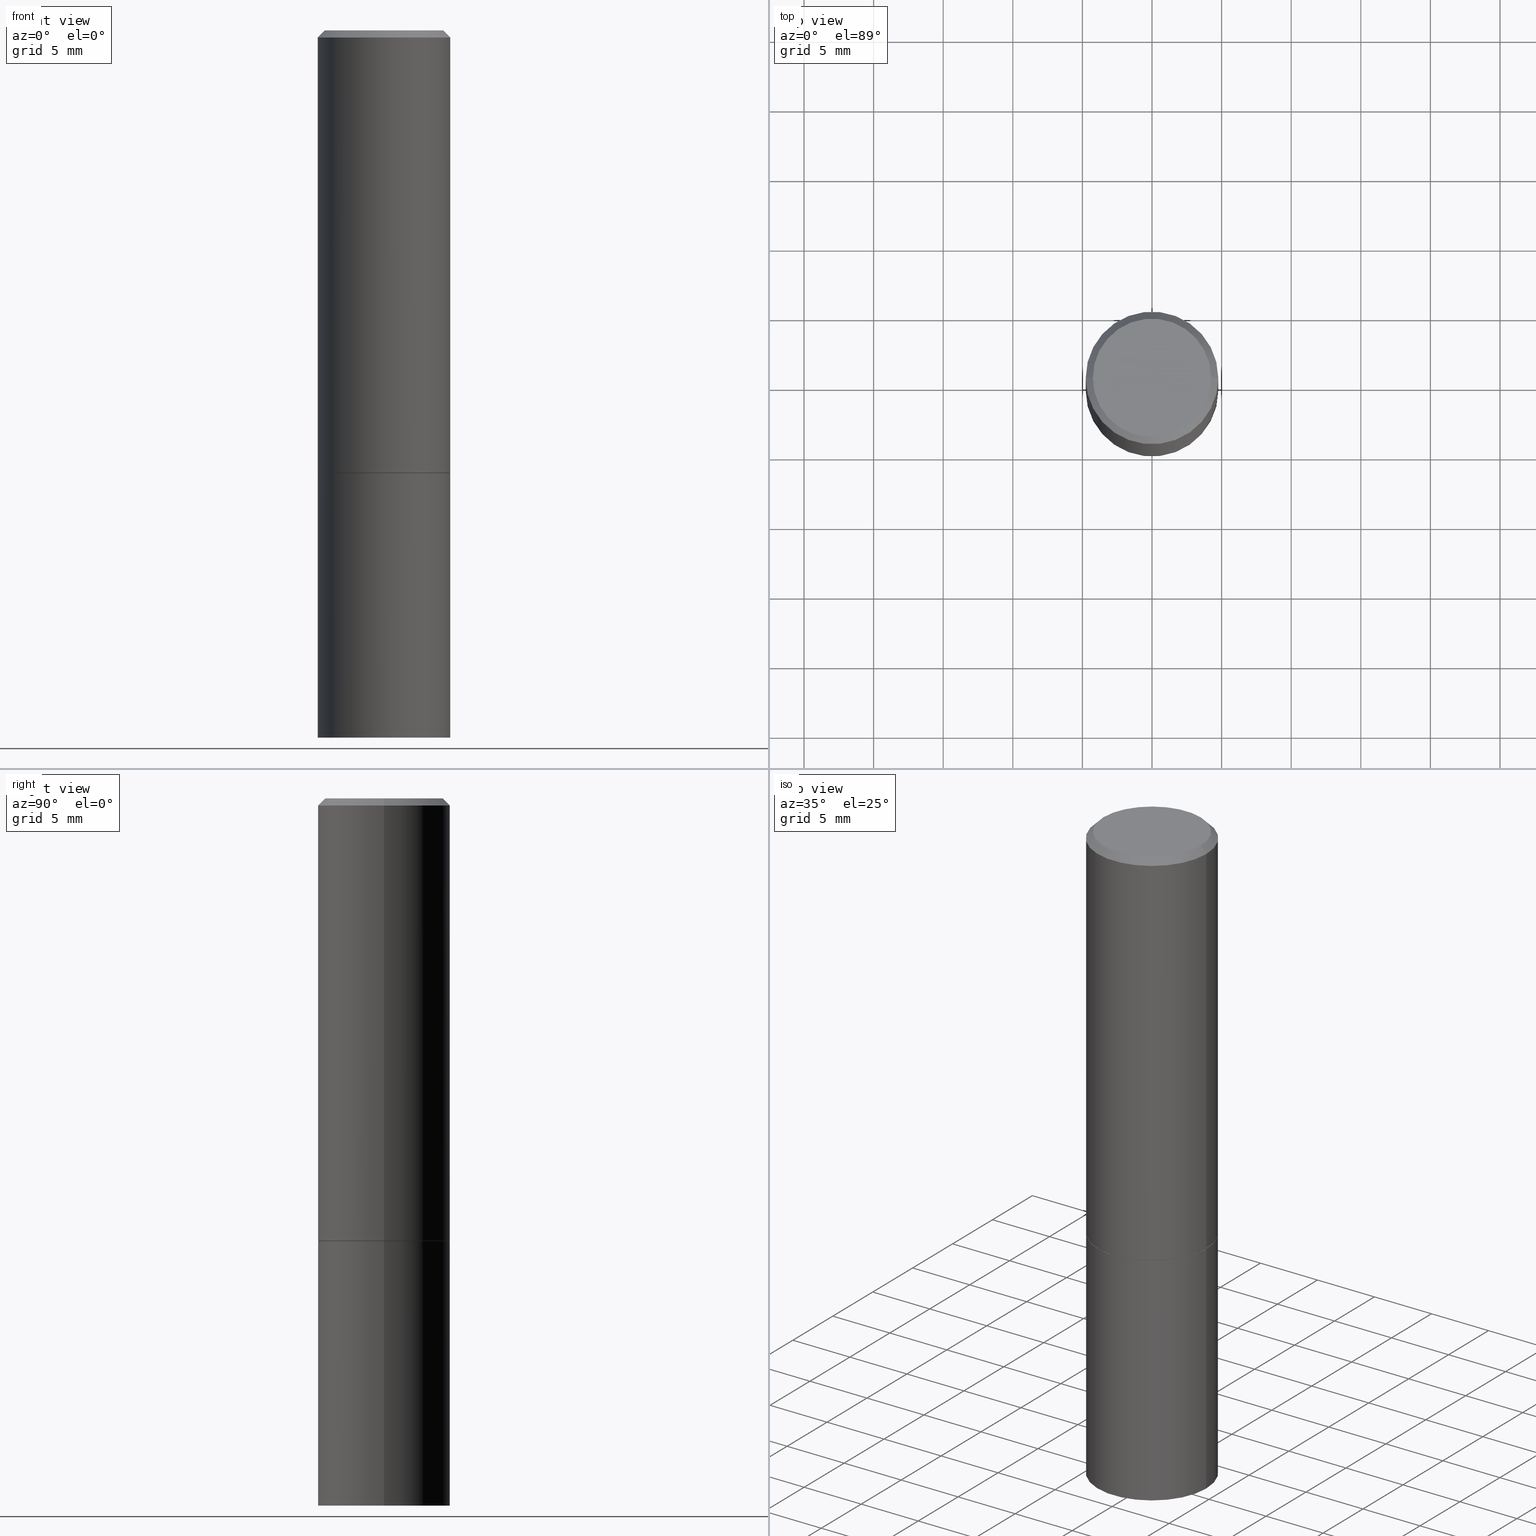
[diagram: canonical four-view strip — front | top / right | iso, engineering-drawing reading convention]
A machine part, canonical four-view strip (front | top / right | iso — engineering-drawing reading convention). The complete STEP part file that produces these views, byte-faithful:
ISO-10303-21;
HEADER;
FILE_DESCRIPTION (( 'STEP AP203' ),
    '1' );
FILE_NAME ('32677.STEP',
    '2022-04-27T15:47:02',
    ( '' ),
    ( '' ),
    'SwSTEP 2.0',
    'SolidWorks 2022',
    '' );
FILE_SCHEMA (( 'CONFIG_CONTROL_DESIGN' ));
ENDSEC;

DATA;
#1 = CARTESIAN_POINT ( 'NONE',  ( 3.061726945343790831E-29, -4.371334636231618486E-15, -1.252000000000000002 ) ) ;
#2 = CALENDAR_DATE ( 2022, 27, 4 ) ;
#3 = DIRECTION ( 'NONE',  ( -2.445468806185136877E-29, 3.491481338843145188E-15, 1.000000000000000000 ) ) ;
#4 = LINE ( 'NONE', #195, #249 ) ;
#5 = APPROVAL ( #130, 'UNSPECIFIED' ) ;
#6 = CYLINDRICAL_SURFACE ( 'NONE', #44, 0.1874999999999999722 ) ;
#7 = FACE_OUTER_BOUND ( 'NONE', #273, .T. ) ;
#8 = FACE_OUTER_BOUND ( 'NONE', #37, .T. ) ;
#9 = ORIENTED_EDGE ( 'NONE', *, *, #253, .F. ) ;
#10 = DIRECTION ( 'NONE',  ( 1.000000000000000000, -6.982962677686266711E-15, 0.000000000000000000 ) ) ;
#11 = DIRECTION ( 'NONE',  ( 2.438088387897960049E-29, -3.491481338843145188E-15, -1.000000000000000000 ) ) ;
#12 = LINE ( 'NONE', #381, #179 ) ;
#13 = VERTEX_POINT ( 'NONE', #357 ) ;
#14 = AXIS2_PLACEMENT_3D ( 'NONE', #345, #205, #157 ) ;
#15 = PERSON_AND_ORGANIZATION ( #106, #146 ) ;
#16 = ORIENTED_EDGE ( 'NONE', *, *, #79, .F. ) ;
#17 = DIRECTION ( 'NONE',  ( 1.000000000000000000, 0.000000000000000000, 0.000000000000000000 ) ) ;
#18 = VERTEX_POINT ( 'NONE', #325 ) ;
#19 = ORIENTED_EDGE ( 'NONE', *, *, #135, .T. ) ;
#20 = CARTESIAN_POINT ( 'NONE',  ( 4.890937612370279289E-31, -6.982962677686299005E-17, -0.02000000000000002470 ) ) ;
#21 = EDGE_CURVE ( 'NONE', #238, #13, #327, .T. ) ;
#22 = EDGE_CURVE ( 'NONE', #52, #226, #81, .T. ) ;
#23 = LOCAL_TIME ( 11, 47, 2.000000000000000000, #66 ) ;
#24 = DATE_AND_TIME ( #330, #58 ) ;
#25 = CC_DESIGN_DATE_AND_TIME_ASSIGNMENT ( #24, #223, ( #167 ) ) ;
#26 = CARTESIAN_POINT ( 'NONE',  ( 4.883120994358428771E-29, -6.971267915954097837E-15, -1.996727175325960557 ) ) ;
#27 = AXIS2_PLACEMENT_3D ( 'NONE', #153, #154, #362 ) ;
#28 = EDGE_CURVE ( 'NONE', #103, #18, #379, .T. ) ;
#29 = ADVANCED_FACE ( 'NONE', ( #173 ), #241, .F. ) ;
#30 = PRODUCT ( '32677', '32677', '', ( #264 ) ) ;
#31 = DIRECTION ( 'NONE',  ( 1.000000000000000000, -6.982962677686265922E-15, 0.000000000000000000 ) ) ;
#32 = DIRECTION ( 'NONE',  ( 0.7071067811865112684, -2.468850131081876830E-15, 0.7071067811865837660 ) ) ;
#33 = AXIS2_PLACEMENT_3D ( 'NONE', #293, #270, #73 ) ;
#34 = DIRECTION ( 'NONE',  ( -2.445468806185136597E-29, 3.491481338843145583E-15, 1.000000000000000000 ) ) ;
#35 = ORIENTED_EDGE ( 'NONE', *, *, #84, .F. ) ;
#36 = CARTESIAN_POINT ( 'NONE',  ( -0.1865000000000000546, -3.040873979690808849E-15, -1.252000000000000002 ) ) ;
#37 = EDGE_LOOP ( 'NONE', ( #147, #382, #265, #140 ) ) ;
#38 = CARTESIAN_POINT ( 'NONE',  ( 0.000000000000000000, 0.000000000000000000, 0.000000000000000000 ) ) ;
#39 = APPROVAL_ROLE ( '' ) ;
#40 = LINE ( 'NONE', #262, #356 ) ;
#41 = APPROVAL_PERSON_ORGANIZATION ( #207, #5, #138 ) ;
#42 = ORIENTED_EDGE ( 'NONE', *, *, #135, .F. ) ;
#43 = CARTESIAN_POINT ( 'NONE',  ( 1.011612334778295380E-27, -1.444314309014566798E-13, -41.36680591548343955 ) ) ;
#44 = AXIS2_PLACEMENT_3D ( 'NONE', #121, #91, #92 ) ;
#45 = ORIENTED_EDGE ( 'NONE', *, *, #243, .F. ) ;
#46 = PERSON_AND_ORGANIZATION_ROLE ( 'creator' ) ;
#47 = ORIENTED_EDGE ( 'NONE', *, *, #344, .F. ) ;
#48 = EDGE_LOOP ( 'NONE', ( #233, #321 ) ) ;
#49 = APPROVAL_STATUS ( 'not_yet_approved' ) ;
#50 = CYLINDRICAL_SURFACE ( 'NONE', #346, 0.1874999999999999722 ) ;
#51 = APPROVAL_PERSON_ORGANIZATION ( #334, #339, #192 ) ;
#52 = VERTEX_POINT ( 'NONE', #355 ) ;
#53 = EDGE_CURVE ( 'NONE', #226, #18, #216, .T. ) ;
#54 = ORIENTED_EDGE ( 'NONE', *, *, #314, .F. ) ;
#55 = CARTESIAN_POINT ( 'NONE',  ( 0.1875000000000000278, -1.309305502066175008E-15, 9.142831454617381013E-30 ) ) ;
#56 = DIRECTION ( 'NONE',  ( 1.000000000000000000, -6.982962677686266711E-15, 0.000000000000000000 ) ) ;
#57 = CIRCLE ( 'NONE', #27, 0.1865000000000000546 ) ;
#58 = LOCAL_TIME ( 11, 47, 2.000000000000000000, #359 ) ;
#59 = UNCERTAINTY_MEASURE_WITH_UNIT (LENGTH_MEASURE( 1.000000000000000082E-05 ), #236, 'distance_accuracy_value', 'NONE');
#60 = EDGE_CURVE ( 'NONE', #237, #239, #115, .T. ) ;
#61 = CIRCLE ( 'NONE', #114, 0.1875000000000000278 ) ;
#62 = DIRECTION ( 'NONE',  ( -2.445468806185136597E-29, 3.491481338843145583E-15, 1.000000000000000000 ) ) ;
#63 = CARTESIAN_POINT ( 'NONE',  ( 0.1865000000000000546, -5.673657175620106691E-15, -1.252000000000000002 ) ) ;
#64 = CARTESIAN_POINT ( 'NONE',  ( 4.890937612370273194E-29, -6.982962677686291165E-15, -2.000000000000000000 ) ) ;
#65 = DIRECTION ( 'NONE',  ( -2.445468806185136597E-29, 3.491481338843145583E-15, 1.000000000000000000 ) ) ;
#66 = COORDINATED_UNIVERSAL_TIME_OFFSET ( 5, 0, .BEHIND. ) ;
#67 = DIRECTION ( 'NONE',  ( -2.445468806185136597E-29, 3.491481338843145583E-15, 1.000000000000000000 ) ) ;
#68 = CC_DESIGN_APPROVAL ( #339, ( #167 ) ) ;
#69 = ORIENTED_EDGE ( 'NONE', *, *, #22, .F. ) ;
#70 = VECTOR ( 'NONE', #386, 39.37007874015748143 ) ;
#71 = ORIENTED_EDGE ( 'NONE', *, *, #243, .T. ) ;
#72 = AXIS2_PLACEMENT_3D ( 'NONE', #139, #271, #297 ) ;
#73 = DIRECTION ( 'NONE',  ( -1.000000000000000000, 6.982962677686265922E-15, -4.876176775795935793E-29 ) ) ;
#74 = FACE_OUTER_BOUND ( 'NONE', #308, .T. ) ;
#75 = DATE_AND_TIME ( #353, #23 ) ;
#76 = CARTESIAN_POINT ( 'NONE',  ( -0.1875000000000000278, -4.344881027408766582E-15, -1.252000000000000002 ) ) ;
#77 = AXIS2_PLACEMENT_3D ( 'NONE', #342, #259, #367 ) ;
#78 = CARTESIAN_POINT ( 'NONE',  ( -0.1874999999999999445, 1.239475875289311513E-15, -0.02000000000000002470 ) ) ;
#79 = EDGE_CURVE ( 'NONE', #268, #208, #4, .T. ) ;
#80 = DIRECTION ( 'NONE',  ( 1.000000000000000000, -6.982962677686265922E-15, 4.876176775795935793E-29 ) ) ;
#81 = CIRCLE ( 'NONE', #128, 0.1875000000000000278 ) ;
#82 = APPROVAL_DATE_TIME ( #222, #125 ) ;
#83 = PERSON_AND_ORGANIZATION_ROLE ( 'creator' ) ;
#84 = EDGE_CURVE ( 'NONE', #113, #103, #340, .T. ) ;
#85 = EDGE_CURVE ( 'NONE', #18, #141, #166, .T. ) ;
#86 = CARTESIAN_POINT ( 'NONE',  ( -0.1674999999999999822, 1.204561061900880455E-15, -8.301862719484110388E-30 ) ) ;
#87 = DESIGN_CONTEXT ( 'detailed design', #304, 'design' ) ;
#88 = FACE_OUTER_BOUND ( 'NONE', #197, .T. ) ;
#89 = AXIS2_PLACEMENT_3D ( 'NONE', #64, #62, #307 ) ;
#90 = VECTOR ( 'NONE', #3, 39.37007874015748143 ) ;
#91 = DIRECTION ( 'NONE',  ( -2.445468806185136597E-29, 3.491481338843145583E-15, 1.000000000000000000 ) ) ;
#92 = DIRECTION ( 'NONE',  ( 1.000000000000000000, -6.982962677686266711E-15, 4.876176775795935793E-29 ) ) ;
#93 = PRODUCT_DEFINITION_FORMATION_WITH_SPECIFIED_SOURCE ( 'ANY', '', #30, .NOT_KNOWN. ) ;
#94 = CIRCLE ( 'NONE', #369, 0.1874999999999999445 ) ;
#95 = CC_DESIGN_PERSON_AND_ORGANIZATION_ASSIGNMENT ( #331, #298, ( #93 ) ) ;
#96 = ORIENTED_EDGE ( 'NONE', *, *, #53, .F. ) ;
#97 = DIRECTION ( 'NONE',  ( -2.445468806185136597E-29, 3.491481338843145583E-15, 1.000000000000000000 ) ) ;
#98 = CIRCLE ( 'NONE', #72, 0.1674999999999999822 ) ;
#99 = DIRECTION ( 'NONE',  ( -1.000000000000000000, 6.982962677686266711E-15, 0.000000000000000000 ) ) ;
#100 = CARTESIAN_POINT ( 'NONE',  ( -0.1865000000000000546, -3.046172434039030856E-15, -1.252000000000000002 ) ) ;
#101 = ADVANCED_FACE ( 'NONE', ( #7 ), #287, .T. ) ;
#102 = EDGE_CURVE ( 'NONE', #239, #237, #57, .T. ) ;
#103 = VERTEX_POINT ( 'NONE', #86 ) ;
#104 = ORIENTED_EDGE ( 'NONE', *, *, #165, .T. ) ;
#105 = LENGTH_MEASURE_WITH_UNIT ( LENGTH_MEASURE( 0.02539999999999999897 ), #112 );
#106 = PERSON ( 'UNSPECIFIED', 'UNSPECIFIED', 'UNSPECIFIED', ('UNSPECIFIED'), ('UNSPECIFIED'), ('UNSPECIFIED') ) ;
#107 = EDGE_LOOP ( 'NONE', ( #47, #276, #45 ) ) ;
#108 = ORIENTED_EDGE ( 'NONE', *, *, #315, .T. ) ;
#109 = ORIENTED_EDGE ( 'NONE', *, *, #384, .F. ) ;
#110 = ADVANCED_FACE ( 'NONE', ( #202 ), #131, .F. ) ;
#111 = CARTESIAN_POINT ( 'NONE',  ( 3.059281476537605228E-29, -4.367843154892774690E-15, -1.250999999999999890 ) ) ;
#112 =( LENGTH_UNIT ( ) NAMED_UNIT ( * ) SI_UNIT ( $, .METRE. ) );
#113 = VERTEX_POINT ( 'NONE', #127 ) ;
#114 = AXIS2_PLACEMENT_3D ( 'NONE', #313, #124, #170 ) ;
#115 = CIRCLE ( 'NONE', #201, 0.1865000000000000546 ) ;
#116 = CARTESIAN_POINT ( 'NONE',  ( -0.1875000000000000278, 1.332267629550188046E-15, -9.223003294227947991E-30 ) ) ;
#117 = EDGE_CURVE ( 'NONE', #237, #52, #40, .T. ) ;
#118 = CARTESIAN_POINT ( 'NONE',  ( 0.1875000000000009992, -8.269306052268460433E-15, -2.000000000000000000 ) ) ;
#119 = LOCAL_TIME ( 11, 47, 2.000000000000000000, #214 ) ;
#120 = ORIENTED_EDGE ( 'NONE', *, *, #165, .F. ) ;
#121 = CARTESIAN_POINT ( 'NONE',  ( 0.000000000000000000, 0.000000000000000000, 0.000000000000000000 ) ) ;
#122 = CIRCLE ( 'NONE', #190, 0.1875000000000000278 ) ;
#123 = CARTESIAN_POINT ( 'NONE',  ( 3.061726945343790831E-29, -4.371334636231618486E-15, -1.252000000000000002 ) ) ;
#124 = DIRECTION ( 'NONE',  ( -2.445468806185136597E-29, 3.491481338843145583E-15, 1.000000000000000000 ) ) ;
#125 = APPROVAL ( #49, 'UNSPECIFIED' ) ;
#126 = ORIENTED_EDGE ( 'NONE', *, *, #28, .F. ) ;
#127 = CARTESIAN_POINT ( 'NONE',  ( 0.1674999999999999822, -1.252653207992878091E-15, 8.469775550109239385E-30 ) ) ;
#128 = AXIS2_PLACEMENT_3D ( 'NONE', #111, #235, #349 ) ;
#129 = AXIS2_PLACEMENT_3D ( 'NONE', #20, #312, #144 ) ;
#130 = APPROVAL_STATUS ( 'not_yet_approved' ) ;
#131 = CONICAL_SURFACE ( 'NONE', #77, 2255.510300424507022, 1.553343034274960344 ) ;
#132 = FACE_OUTER_BOUND ( 'NONE', #351, .T. ) ;
#133 = DIRECTION ( 'NONE',  ( 0.9998476951563912696, -6.920387862090559512E-15, -0.01745240643727649296 ) ) ;
#134 = ADVANCED_FACE ( 'NONE', ( #132 ), #203, .F. ) ;
#135 = EDGE_CURVE ( 'NONE', #226, #52, #194, .T. ) ;
#136 = PRODUCT_RELATED_PRODUCT_CATEGORY ( 'detail', '', ( #30 ) ) ;
#137 = ORIENTED_EDGE ( 'NONE', *, *, #28, .T. ) ;
#138 = APPROVAL_ROLE ( '' ) ;
#139 = CARTESIAN_POINT ( 'NONE',  ( 0.000000000000000000, 0.000000000000000000, 0.000000000000000000 ) ) ;
#140 = ORIENTED_EDGE ( 'NONE', *, *, #305, .F. ) ;
#141 = VERTEX_POINT ( 'NONE', #231 ) ;
#142 = DATE_TIME_ROLE ( 'creation_date' ) ;
#143 = EDGE_LOOP ( 'NONE', ( #71, #370, #161, #175 ) ) ;
#144 = DIRECTION ( 'NONE',  ( -1.000000000000000000, 6.982962677686266711E-15, 0.000000000000000000 ) ) ;
#145 = ORIENTED_EDGE ( 'NONE', *, *, #219, .T. ) ;
#146 = ORGANIZATION ( 'UNSPECIFIED', 'UNSPECIFIED', '' ) ;
#147 = ORIENTED_EDGE ( 'NONE', *, *, #274, .F. ) ;
#148 = DIRECTION ( 'NONE',  ( -2.438088387897960049E-29, 3.491481338843145188E-15, 1.000000000000000000 ) ) ;
#149 = VECTOR ( 'NONE', #247, 39.37007874015748854 ) ;
#150 = APPROVAL_DATE_TIME ( #332, #339 ) ;
#151 = AXIS2_PLACEMENT_3D ( 'NONE', #263, #97, #311 ) ;
#152 = ADVANCED_FACE ( 'NONE', ( #309 ), #303, .T. ) ;
#153 = CARTESIAN_POINT ( 'NONE',  ( 3.061726945343790831E-29, -4.371334636231618486E-15, -1.252000000000000002 ) ) ;
#154 = DIRECTION ( 'NONE',  ( -2.445468806185136597E-29, 3.491481338843145583E-15, 1.000000000000000000 ) ) ;
#155 = APPROVAL_PERSON_ORGANIZATION ( #322, #125, #39 ) ;
#156 = CLOSED_SHELL ( 'NONE', ( #184, #110, #185, #204, #29 ) ) ;
#157 = DIRECTION ( 'NONE',  ( 1.000000000000000000, -6.982962677686265922E-15, 4.876176775795935793E-29 ) ) ;
#158 = CARTESIAN_POINT ( 'NONE',  ( 4.890937612370279289E-31, -6.982962677686299005E-17, -0.02000000000000002470 ) ) ;
#159 = CARTESIAN_POINT ( 'NONE',  ( -0.1875000000000000278, -8.865687612846302579E-16, -1.250999999999999890 ) ) ;
#160 = MANIFOLD_SOLID_BREP ( 'Body-Move/Copy2[2]', #360 ) ;
#161 = ORIENTED_EDGE ( 'NONE', *, *, #219, .F. ) ;
#162 = DIRECTION ( 'NONE',  ( -2.445468806185136597E-29, 3.491481338843145583E-15, 1.000000000000000000 ) ) ;
#163 = MANIFOLD_SOLID_BREP ( 'Body-Move/Copy2[1]', #156 ) ;
#164 = CARTESIAN_POINT ( 'NONE',  ( 4.890937612370279289E-31, -6.982962677686299005E-17, -0.02000000000000002470 ) ) ;
#165 = EDGE_CURVE ( 'NONE', #141, #18, #94, .T. ) ;
#166 = CIRCLE ( 'NONE', #390, 0.1874999999999999445 ) ;
#167 = SECURITY_CLASSIFICATION ( '', '', #302 ) ;
#168 =( NAMED_UNIT ( * ) SI_UNIT ( $, .STERADIAN. ) SOLID_ANGLE_UNIT ( ) );
#169 = ORIENTED_EDGE ( 'NONE', *, *, #60, .T. ) ;
#170 = DIRECTION ( 'NONE',  ( 1.000000000000000000, -6.982962677686266711E-15, 0.000000000000000000 ) ) ;
#171 = FACE_OUTER_BOUND ( 'NONE', #377, .T. ) ;
#172 = ORIENTED_EDGE ( 'NONE', *, *, #84, .T. ) ;
#173 = FACE_OUTER_BOUND ( 'NONE', #352, .T. ) ;
#174 = CALENDAR_DATE ( 2022, 27, 4 ) ;
#175 = ORIENTED_EDGE ( 'NONE', *, *, #21, .F. ) ;
#176 = CARTESIAN_POINT ( 'NONE',  ( -0.1874999999999999722, 1.332267629550187651E-15, -9.223003294227946589E-30 ) ) ;
#177 = COORDINATED_UNIVERSAL_TIME_OFFSET ( 5, 0, .BEHIND. ) ;
#178 = DIRECTION ( 'NONE',  ( -0.7071067811865112684, 7.493145998870223209E-15, 0.7071067811865837660 ) ) ;
#179 = VECTOR ( 'NONE', #133, 39.37007874015748143 ) ;
#180 = AXIS2_PLACEMENT_3D ( 'NONE', #199, #34, #224 ) ;
#181 = CC_DESIGN_PERSON_AND_ORGANIZATION_ASSIGNMENT ( #350, #46, ( #251 ) ) ;
#182 = DIRECTION ( 'NONE',  ( -2.445468806185136877E-29, 3.491481338843145188E-15, 1.000000000000000000 ) ) ;
#183 = CARTESIAN_POINT ( 'NONE',  ( 3.061726945343790831E-29, -4.371334636231618486E-15, -1.252000000000000002 ) ) ;
#184 = ADVANCED_FACE ( 'NONE', ( #373 ), #310, .T. ) ;
#185 = ADVANCED_FACE ( 'NONE', ( #341 ), #246, .F. ) ;
#186 = VECTOR ( 'NONE', #182, 39.37007874015748143 ) ;
#187 = ADVANCED_BREP_SHAPE_REPRESENTATION ( '32677', ( #163, #160, #281 ), #193 ) ;
#188 = LINE ( 'NONE', #300, #149 ) ;
#189 = PERSON_AND_ORGANIZATION ( #106, #146 ) ;
#190 = AXIS2_PLACEMENT_3D ( 'NONE', #221, #329, #56 ) ;
#191 = COORDINATED_UNIVERSAL_TIME_OFFSET ( 5, 0, .BEHIND. ) ;
#192 = APPROVAL_ROLE ( '' ) ;
#193 =( GEOMETRIC_REPRESENTATION_CONTEXT ( 3 ) GLOBAL_UNCERTAINTY_ASSIGNED_CONTEXT ( ( #59 ) ) GLOBAL_UNIT_ASSIGNED_CONTEXT ( ( #236, #295, #168 ) ) REPRESENTATION_CONTEXT ( 'NONE', 'WORKASPACE' ) );
#194 = CIRCLE ( 'NONE', #151, 0.1875000000000000278 ) ;
#195 = CARTESIAN_POINT ( 'NONE',  ( -2.677554574301123258E-19, -6.971535671411577122E-15, -1.996727175325960557 ) ) ;
#196 = DIRECTION ( 'NONE',  ( -2.445468806185136597E-29, 3.491481338843145583E-15, 1.000000000000000000 ) ) ;
#197 = EDGE_LOOP ( 'NONE', ( #109, #290, #306, #42 ) ) ;
#198 = CARTESIAN_POINT ( 'NONE',  ( 3.061726945343790831E-29, -4.371334636231618486E-15, -1.252000000000000002 ) ) ;
#199 = CARTESIAN_POINT ( 'NONE',  ( 0.000000000000000000, 0.000000000000000000, 0.000000000000000000 ) ) ;
#200 = CC_DESIGN_SECURITY_CLASSIFICATION ( #167, ( #93 ) ) ;
#201 = AXIS2_PLACEMENT_3D ( 'NONE', #1, #234, #348 ) ;
#202 = FACE_OUTER_BOUND ( 'NONE', #296, .T. ) ;
#203 = PLANE ( 'NONE',  #261 ) ;
#204 = ADVANCED_FACE ( 'NONE', ( #8 ), #338, .T. ) ;
#205 = DIRECTION ( 'NONE',  ( -2.445468806185136597E-29, 3.491481338843145583E-15, 1.000000000000000000 ) ) ;
#206 = CARTESIAN_POINT ( 'NONE',  ( -0.1875000000000009992, -5.673657175620109846E-15, -2.000000000000000000 ) ) ;
#207 = PERSON_AND_ORGANIZATION ( #106, #146 ) ;
#208 = VERTEX_POINT ( 'NONE', #206 ) ;
#209 = DIRECTION ( 'NONE',  ( -0.7071067811865462405, 2.468850131082243650E-15, -0.7071067811865486830 ) ) ;
#210 = DIRECTION ( 'NONE',  ( 1.000000000000000000, -6.982962677686266711E-15, 4.876176775795935793E-29 ) ) ;
#211 = ORIENTED_EDGE ( 'NONE', *, *, #22, .T. ) ;
#212 = ORIENTED_EDGE ( 'NONE', *, *, #305, .T. ) ;
#213 = DATE_AND_TIME ( #174, #119 ) ;
#214 = COORDINATED_UNIVERSAL_TIME_OFFSET ( 5, 0, .BEHIND. ) ;
#215 = AXIS2_PLACEMENT_3D ( 'NONE', #286, #285, #99 ) ;
#216 = LINE ( 'NONE', #176, #354 ) ;
#217 = ADVANCED_FACE ( 'NONE', ( #289 ), #6, .T. ) ;
#218 = CONICAL_SURFACE ( 'NONE', #365, 0.1865000000000000546, 0.7853981633973970977 ) ;
#219 = EDGE_CURVE ( 'NONE', #13, #363, #61, .T. ) ;
#220 = LINE ( 'NONE', #116, #70 ) ;
#221 = CARTESIAN_POINT ( 'NONE',  ( 3.061726945343790831E-29, -4.371334636231618486E-15, -1.252000000000000002 ) ) ;
#222 = DATE_AND_TIME ( #336, #242 ) ;
#223 = DATE_TIME_ROLE ( 'classification_date' ) ;
#224 = DIRECTION ( 'NONE',  ( 1.000000000000000000, -6.982962677686266711E-15, 4.876176775795935232E-29 ) ) ;
#225 = CARTESIAN_POINT ( 'NONE',  ( 1.169646248512449595E-15, 0.1674999999999999822, -5.848231242562268683E-16 ) ) ;
#226 = VERTEX_POINT ( 'NONE', #159 ) ;
#227 = CARTESIAN_POINT ( 'NONE',  ( 0.1874999999999999722, -1.309305502066174811E-15, 9.142831454617378210E-30 ) ) ;
#228 = DIRECTION ( 'NONE',  ( 1.000000000000000000, -6.982962677686266711E-15, 0.000000000000000000 ) ) ;
#229 = LINE ( 'NONE', #227, #90 ) ;
#230 = EDGE_CURVE ( 'NONE', #52, #141, #229, .T. ) ;
#231 = CARTESIAN_POINT ( 'NONE',  ( 0.1874999999999999445, -1.356173001359024874E-15, -0.02000000000000002470 ) ) ;
#232 = APPLICATION_PROTOCOL_DEFINITION ( 'international standard', 'config_control_design', 1994, #275 ) ;
#233 = ORIENTED_EDGE ( 'NONE', *, *, #60, .F. ) ;
#234 = DIRECTION ( 'NONE',  ( -2.445468806185136597E-29, 3.491481338843145583E-15, 1.000000000000000000 ) ) ;
#235 = DIRECTION ( 'NONE',  ( -2.445468806185136597E-29, 3.491481338843145583E-15, 1.000000000000000000 ) ) ;
#236 =( CONVERSION_BASED_UNIT ( 'INCH', #105 ) LENGTH_UNIT ( ) NAMED_UNIT ( #323 ) );
#237 = VERTEX_POINT ( 'NONE', #63 ) ;
#238 = VERTEX_POINT ( 'NONE', #118 ) ;
#239 = VERTEX_POINT ( 'NONE', #36 ) ;
#240 = DIRECTION ( 'NONE',  ( -2.445468806185136877E-29, 3.491481338843145188E-15, 1.000000000000000000 ) ) ;
#241 = PLANE ( 'NONE',  #33 ) ;
#242 = LOCAL_TIME ( 11, 47, 2.000000000000000000, #177 ) ;
#243 = EDGE_CURVE ( 'NONE', #238, #208, #317, .T. ) ;
#244 = ADVANCED_FACE ( 'NONE', ( #88 ), #218, .T. ) ;
#245 = ORIENTED_EDGE ( 'NONE', *, *, #384, .T. ) ;
#246 = CONICAL_SURFACE ( 'NONE', #326, 2255.510300424507022, 1.553343034274960344 ) ;
#247 = DIRECTION ( 'NONE',  ( 0.7071067811865462405, -7.319954787623251312E-15, -0.7071067811865486830 ) ) ;
#248 = VECTOR ( 'NONE', #178, 39.37007874015748143 ) ;
#249 = VECTOR ( 'NONE', #254, 39.37007874015748143 ) ;
#250 = PERSON_AND_ORGANIZATION ( #106, #146 ) ;
#251 = PRODUCT_DEFINITION ( 'UNKNOWN', '', #93, #87 ) ;
#252 = SHAPE_DEFINITION_REPRESENTATION ( #333, #187 ) ;
#253 = EDGE_CURVE ( 'NONE', #208, #238, #277, .T. ) ;
#254 = DIRECTION ( 'NONE',  ( -0.9998476951563912696, 6.920964387254060733E-15, -0.01745240643727649296 ) ) ;
#255 = DIRECTION ( 'NONE',  ( 2.445468806185136597E-29, -3.491481338843145583E-15, -1.000000000000000000 ) ) ;
#256 = ORIENTED_EDGE ( 'NONE', *, *, #230, .T. ) ;
#257 = DIRECTION ( 'NONE',  ( 1.000000000000000000, -6.982962677686265922E-15, 4.876176775795935793E-29 ) ) ;
#258 = AXIS2_PLACEMENT_3D ( 'NONE', #38, #67, #257 ) ;
#259 = DIRECTION ( 'NONE',  ( 2.445468806185136597E-29, -3.491481338843145583E-15, -1.000000000000000000 ) ) ;
#260 = ORIENTED_EDGE ( 'NONE', *, *, #85, .T. ) ;
#261 = AXIS2_PLACEMENT_3D ( 'NONE', #225, #11, #371 ) ;
#262 = CARTESIAN_POINT ( 'NONE',  ( 0.1865000000000000546, -5.673657175620106691E-15, -1.252000000000000002 ) ) ;
#263 = CARTESIAN_POINT ( 'NONE',  ( 3.059281476537605228E-29, -4.367843154892774690E-15, -1.250999999999999890 ) ) ;
#264 = MECHANICAL_CONTEXT ( 'NONE', #275, 'mechanical' ) ;
#265 = ORIENTED_EDGE ( 'NONE', *, *, #21, .T. ) ;
#266 = APPROVAL_DATE_TIME ( #75, #5 ) ;
#267 = DIRECTION ( 'NONE',  ( -2.445468806185136597E-29, 3.491481338843145583E-15, 1.000000000000000000 ) ) ;
#268 = VERTEX_POINT ( 'NONE', #26 ) ;
#269 = CC_DESIGN_PERSON_AND_ORGANIZATION_ASSIGNMENT ( #250, #387, ( #167 ) ) ;
#270 = DIRECTION ( 'NONE',  ( 2.438088387897960049E-29, -3.491481338843145188E-15, -1.000000000000000000 ) ) ;
#271 = DIRECTION ( 'NONE',  ( -2.445468806185136597E-29, 3.491481338843145583E-15, 1.000000000000000000 ) ) ;
#272 = ORIENTED_EDGE ( 'NONE', *, *, #53, .T. ) ;
#273 = EDGE_LOOP ( 'NONE', ( #169, #245, #69, #337 ) ) ;
#274 = EDGE_CURVE ( 'NONE', #208, #363, #220, .T. ) ;
#275 = APPLICATION_CONTEXT ( 'configuration controlled 3d designs of mechanical parts and assemblies' ) ;
#276 = ORIENTED_EDGE ( 'NONE', *, *, #79, .T. ) ;
#277 = CIRCLE ( 'NONE', #89, 0.1875000000000000278 ) ;
#278 = CC_DESIGN_DATE_AND_TIME_ASSIGNMENT ( #213, #142, ( #251 ) ) ;
#279 = ADVANCED_FACE ( 'NONE', ( #328 ), #389, .F. ) ;
#280 = ORIENTED_EDGE ( 'NONE', *, *, #85, .F. ) ;
#281 = AXIS2_PLACEMENT_3D ( 'NONE', #291, #319, #17 ) ;
#282 = DIRECTION ( 'NONE',  ( -2.445468806185136597E-29, 3.491481338843145583E-15, 1.000000000000000000 ) ) ;
#283 = DIRECTION ( 'NONE',  ( -1.000000000000000000, 6.982962677686266711E-15, 0.000000000000000000 ) ) ;
#284 = DIRECTION ( 'NONE',  ( 1.000000000000000000, -6.982962677686266711E-15, 0.000000000000000000 ) ) ;
#285 = DIRECTION ( 'NONE',  ( 2.445468806185136597E-29, -3.491481338843145583E-15, -1.000000000000000000 ) ) ;
#286 = CARTESIAN_POINT ( 'NONE',  ( 4.890937612370279289E-31, -6.982962677686299005E-17, -0.02000000000000002470 ) ) ;
#287 = CONICAL_SURFACE ( 'NONE', #383, 0.1865000000000000546, 0.7853981633973970977 ) ;
#288 = LOCAL_TIME ( 11, 47, 2.000000000000000000, #191 ) ;
#289 = FACE_OUTER_BOUND ( 'NONE', #316, .T. ) ;
#290 = ORIENTED_EDGE ( 'NONE', *, *, #102, .T. ) ;
#291 = CARTESIAN_POINT ( 'NONE',  ( 0.000000000000000000, 0.000000000000000000, 0.000000000000000000 ) ) ;
#292 = ORIENTED_EDGE ( 'NONE', *, *, #344, .T. ) ;
#293 = CARTESIAN_POINT ( 'NONE',  ( 1.309305502066205577E-15, 0.1874999999999956424, -1.252000000000000446 ) ) ;
#294 = EDGE_LOOP ( 'NONE', ( #35, #378, #104, #126 ) ) ;
#295 =( NAMED_UNIT ( * ) PLANE_ANGLE_UNIT ( ) SI_UNIT ( $, .RADIAN. ) );
#296 = EDGE_LOOP ( 'NONE', ( #16, #292, #9 ) ) ;
#297 = DIRECTION ( 'NONE',  ( 1.000000000000000000, -6.982962677686266711E-15, 4.876176775795935232E-29 ) ) ;
#298 = PERSON_AND_ORGANIZATION_ROLE ( 'design_supplier' ) ;
#299 = CONICAL_SURFACE ( 'NONE', #129, 0.1874999999999999445, 0.7853981633974466137 ) ;
#300 = CARTESIAN_POINT ( 'NONE',  ( 0.1874999999999999445, -1.356173001359024874E-15, -0.02000000000000002470 ) ) ;
#301 = APPROVAL_STATUS ( 'not_yet_approved' ) ;
#302 = SECURITY_CLASSIFICATION_LEVEL ( 'unclassified' ) ;
#303 = CONICAL_SURFACE ( 'NONE', #215, 0.1874999999999999445, 0.7853981633974466137 ) ;
#304 = APPLICATION_CONTEXT ( 'configuration controlled 3d designs of mechanical parts and assemblies' ) ;
#305 = EDGE_CURVE ( 'NONE', #363, #13, #122, .T. ) ;
#306 = ORIENTED_EDGE ( 'NONE', *, *, #117, .T. ) ;
#307 = DIRECTION ( 'NONE',  ( 1.000000000000000000, -6.982962677686266711E-15, 0.000000000000000000 ) ) ;
#308 = EDGE_LOOP ( 'NONE', ( #96, #19, #256, #280 ) ) ;
#309 = FACE_OUTER_BOUND ( 'NONE', #294, .T. ) ;
#310 = CYLINDRICAL_SURFACE ( 'NONE', #14, 0.1875000000000000278 ) ;
#311 = DIRECTION ( 'NONE',  ( 1.000000000000000000, -6.982962677686266711E-15, 0.000000000000000000 ) ) ;
#312 = DIRECTION ( 'NONE',  ( 2.445468806185136597E-29, -3.491481338843145583E-15, -1.000000000000000000 ) ) ;
#313 = CARTESIAN_POINT ( 'NONE',  ( 3.061726945343790831E-29, -4.371334636231618486E-15, -1.252000000000000002 ) ) ;
#314 = EDGE_CURVE ( 'NONE', #113, #141, #188, .T. ) ;
#315 = EDGE_CURVE ( 'NONE', #103, #113, #98, .T. ) ;
#316 = EDGE_LOOP ( 'NONE', ( #211, #272, #120, #347 ) ) ;
#317 = CIRCLE ( 'NONE', #366, 0.1875000000000000278 ) ;
#318 = APPLICATION_PROTOCOL_DEFINITION ( 'international standard', 'config_control_design', 1994, #304 ) ;
#319 = DIRECTION ( 'NONE',  ( 0.000000000000000000, 0.000000000000000000, 1.000000000000000000 ) ) ;
#320 = AXIS2_PLACEMENT_3D ( 'NONE', #183, #148, #80 ) ;
#321 = ORIENTED_EDGE ( 'NONE', *, *, #102, .F. ) ;
#322 = PERSON_AND_ORGANIZATION ( #106, #146 ) ;
#323 = DIMENSIONAL_EXPONENTS ( 1.000000000000000000, 0.000000000000000000, 0.000000000000000000, 0.000000000000000000, 0.000000000000000000, 0.000000000000000000, 0.000000000000000000 ) ;
#324 = CARTESIAN_POINT ( 'NONE',  ( 0.000000000000000000, 0.000000000000000000, 0.000000000000000000 ) ) ;
#325 = CARTESIAN_POINT ( 'NONE',  ( -0.1874999999999999445, 1.239475875289311513E-15, -0.02000000000000002470 ) ) ;
#326 = AXIS2_PLACEMENT_3D ( 'NONE', #43, #255, #283 ) ;
#327 = LINE ( 'NONE', #55, #186 ) ;
#328 = FACE_OUTER_BOUND ( 'NONE', #48, .T. ) ;
#329 = DIRECTION ( 'NONE',  ( -2.445468806185136597E-29, 3.491481338843145583E-15, 1.000000000000000000 ) ) ;
#330 = CALENDAR_DATE ( 2022, 27, 4 ) ;
#331 = PERSON_AND_ORGANIZATION ( #106, #146 ) ;
#332 = DATE_AND_TIME ( #2, #288 ) ;
#333 = PRODUCT_DEFINITION_SHAPE ( 'NONE', 'NONE',  #251 ) ;
#334 = PERSON_AND_ORGANIZATION ( #106, #146 ) ;
#335 = DIRECTION ( 'NONE',  ( 1.000000000000000000, -6.982962677686265922E-15, 0.000000000000000000 ) ) ;
#336 = CALENDAR_DATE ( 2022, 27, 4 ) ;
#337 = ORIENTED_EDGE ( 'NONE', *, *, #117, .F. ) ;
#338 = CYLINDRICAL_SURFACE ( 'NONE', #258, 0.1875000000000000278 ) ;
#339 = APPROVAL ( #301, 'UNSPECIFIED' ) ;
#340 = CIRCLE ( 'NONE', #180, 0.1674999999999999822 ) ;
#341 = FACE_OUTER_BOUND ( 'NONE', #107, .T. ) ;
#342 = CARTESIAN_POINT ( 'NONE',  ( 1.011612334778295380E-27, -1.444314309014566798E-13, -41.36680591548343955 ) ) ;
#343 = PERSON_AND_ORGANIZATION_ROLE ( 'design_owner' ) ;
#344 = EDGE_CURVE ( 'NONE', #268, #238, #12, .T. ) ;
#345 = CARTESIAN_POINT ( 'NONE',  ( 0.000000000000000000, 0.000000000000000000, 0.000000000000000000 ) ) ;
#346 = AXIS2_PLACEMENT_3D ( 'NONE', #324, #267, #210 ) ;
#347 = ORIENTED_EDGE ( 'NONE', *, *, #230, .F. ) ;
#348 = DIRECTION ( 'NONE',  ( 1.000000000000000000, -6.982962677686265922E-15, 0.000000000000000000 ) ) ;
#349 = DIRECTION ( 'NONE',  ( 1.000000000000000000, -6.982962677686266711E-15, 0.000000000000000000 ) ) ;
#350 = PERSON_AND_ORGANIZATION ( #106, #146 ) ;
#351 = EDGE_LOOP ( 'NONE', ( #108, #172 ) ) ;
#352 = EDGE_LOOP ( 'NONE', ( #145, #212 ) ) ;
#353 = CALENDAR_DATE ( 2022, 27, 4 ) ;
#354 = VECTOR ( 'NONE', #240, 39.37007874015748143 ) ;
#355 = CARTESIAN_POINT ( 'NONE',  ( 0.1875000000000000278, -5.677148656958949698E-15, -1.250999999999999890 ) ) ;
#356 = VECTOR ( 'NONE', #32, 39.37007874015748143 ) ;
#357 = CARTESIAN_POINT ( 'NONE',  ( 0.1875000000000000278, -5.680640138297793494E-15, -1.252000000000000002 ) ) ;
#358 = ADVANCED_FACE ( 'NONE', ( #171 ), #299, .T. ) ;
#359 = COORDINATED_UNIVERSAL_TIME_OFFSET ( 5, 0, .BEHIND. ) ;
#360 = CLOSED_SHELL ( 'NONE', ( #101, #217, #152, #358, #372, #244, #279, #134 ) ) ;
#361 = CC_DESIGN_APPROVAL ( #125, ( #93 ) ) ;
#362 = DIRECTION ( 'NONE',  ( 1.000000000000000000, -6.982962677686265922E-15, 0.000000000000000000 ) ) ;
#363 = VERTEX_POINT ( 'NONE', #76 ) ;
#364 = CARTESIAN_POINT ( 'NONE',  ( 4.890937612370273194E-29, -6.982962677686291165E-15, -2.000000000000000000 ) ) ;
#365 = AXIS2_PLACEMENT_3D ( 'NONE', #198, #162, #335 ) ;
#366 = AXIS2_PLACEMENT_3D ( 'NONE', #364, #368, #228 ) ;
#367 = DIRECTION ( 'NONE',  ( -1.000000000000000000, 6.982962677686266711E-15, 0.000000000000000000 ) ) ;
#368 = DIRECTION ( 'NONE',  ( -2.445468806185136597E-29, 3.491481338843145583E-15, 1.000000000000000000 ) ) ;
#369 = AXIS2_PLACEMENT_3D ( 'NONE', #164, #65, #10 ) ;
#370 = ORIENTED_EDGE ( 'NONE', *, *, #274, .T. ) ;
#371 = DIRECTION ( 'NONE',  ( -1.000000000000000000, 6.982962677686265922E-15, -4.876176775795935793E-29 ) ) ;
#372 = ADVANCED_FACE ( 'NONE', ( #74 ), #50, .T. ) ;
#373 = FACE_OUTER_BOUND ( 'NONE', #143, .T. ) ;
#374 = ORIENTED_EDGE ( 'NONE', *, *, #315, .F. ) ;
#375 = LINE ( 'NONE', #100, #248 ) ;
#376 = VECTOR ( 'NONE', #209, 39.37007874015748854 ) ;
#377 = EDGE_LOOP ( 'NONE', ( #54, #374, #137, #260 ) ) ;
#378 = ORIENTED_EDGE ( 'NONE', *, *, #314, .T. ) ;
#379 = LINE ( 'NONE', #78, #376 ) ;
#380 = CC_DESIGN_PERSON_AND_ORGANIZATION_ASSIGNMENT ( #189, #83, ( #93 ) ) ;
#381 = CARTESIAN_POINT ( 'NONE',  ( 2.677554575277710814E-19, -6.971535671411577122E-15, -1.996727175325960557 ) ) ;
#382 = ORIENTED_EDGE ( 'NONE', *, *, #253, .T. ) ;
#383 = AXIS2_PLACEMENT_3D ( 'NONE', #123, #282, #31 ) ;
#384 = EDGE_CURVE ( 'NONE', #239, #226, #375, .T. ) ;
#385 = CC_DESIGN_PERSON_AND_ORGANIZATION_ASSIGNMENT ( #15, #343, ( #30 ) ) ;
#386 = DIRECTION ( 'NONE',  ( -2.445468806185136877E-29, 3.491481338843145188E-15, 1.000000000000000000 ) ) ;
#387 = PERSON_AND_ORGANIZATION_ROLE ( 'classification_officer' ) ;
#388 = CC_DESIGN_APPROVAL ( #5, ( #251 ) ) ;
#389 = PLANE ( 'NONE',  #320 ) ;
#390 = AXIS2_PLACEMENT_3D ( 'NONE', #158, #196, #284 ) ;
ENDSEC;
END-ISO-10303-21;
